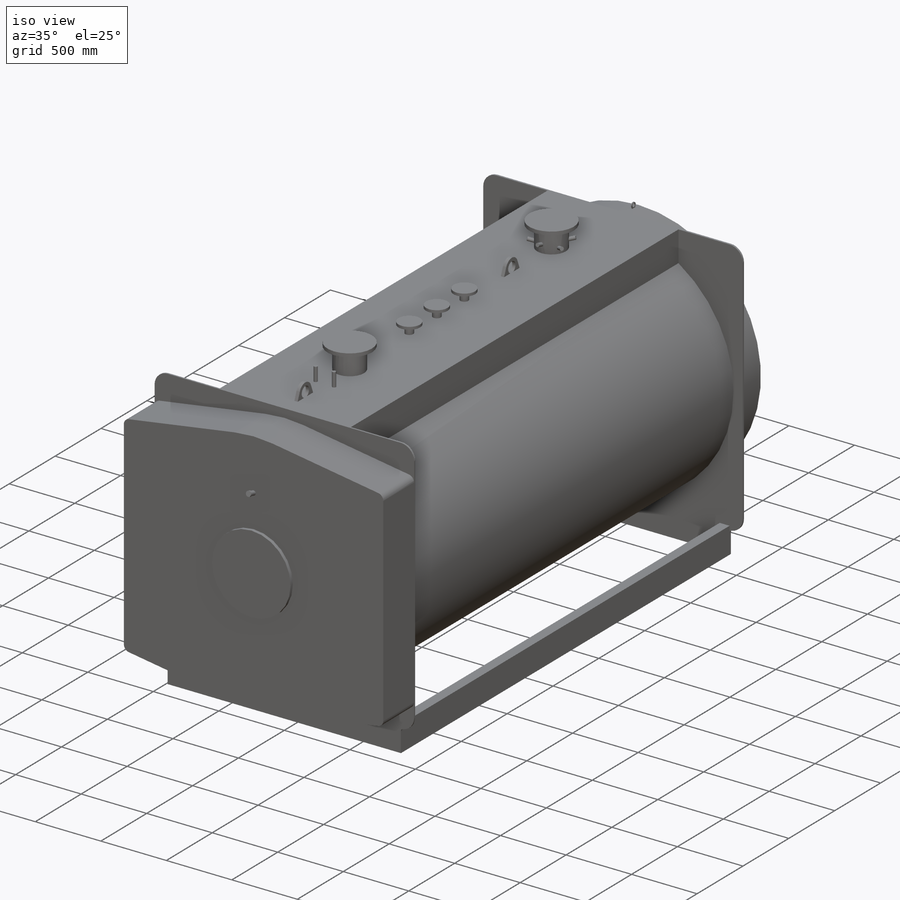
[diagram: iso view]
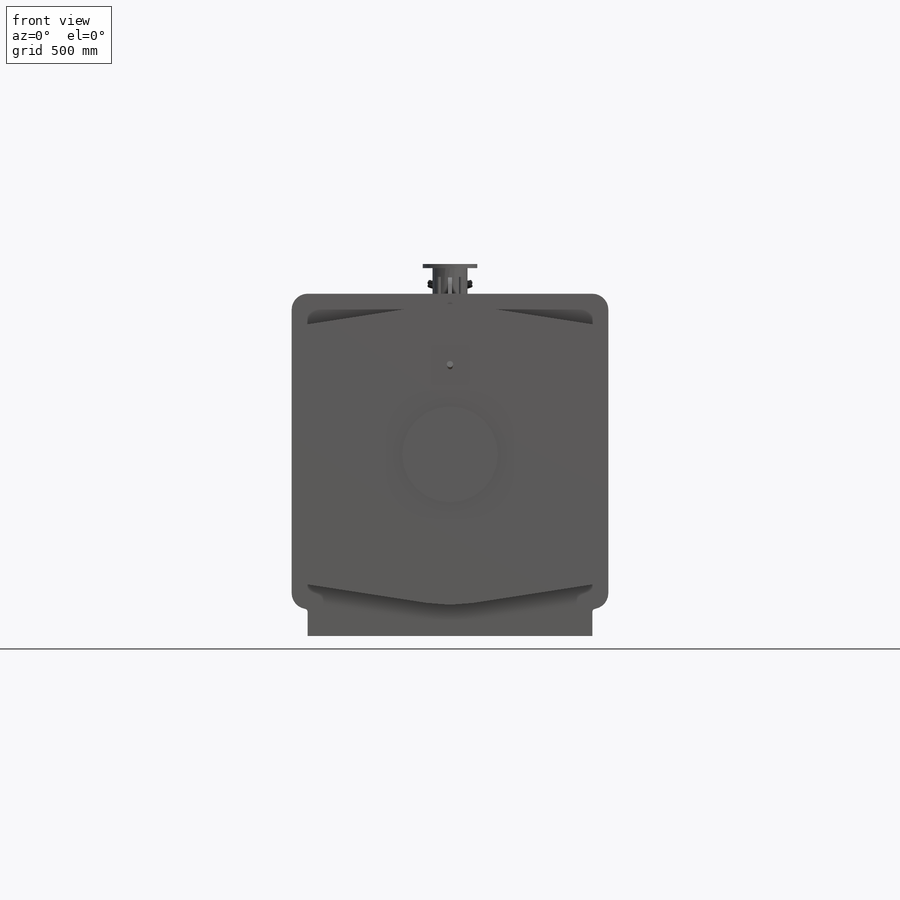
[diagram: front view]
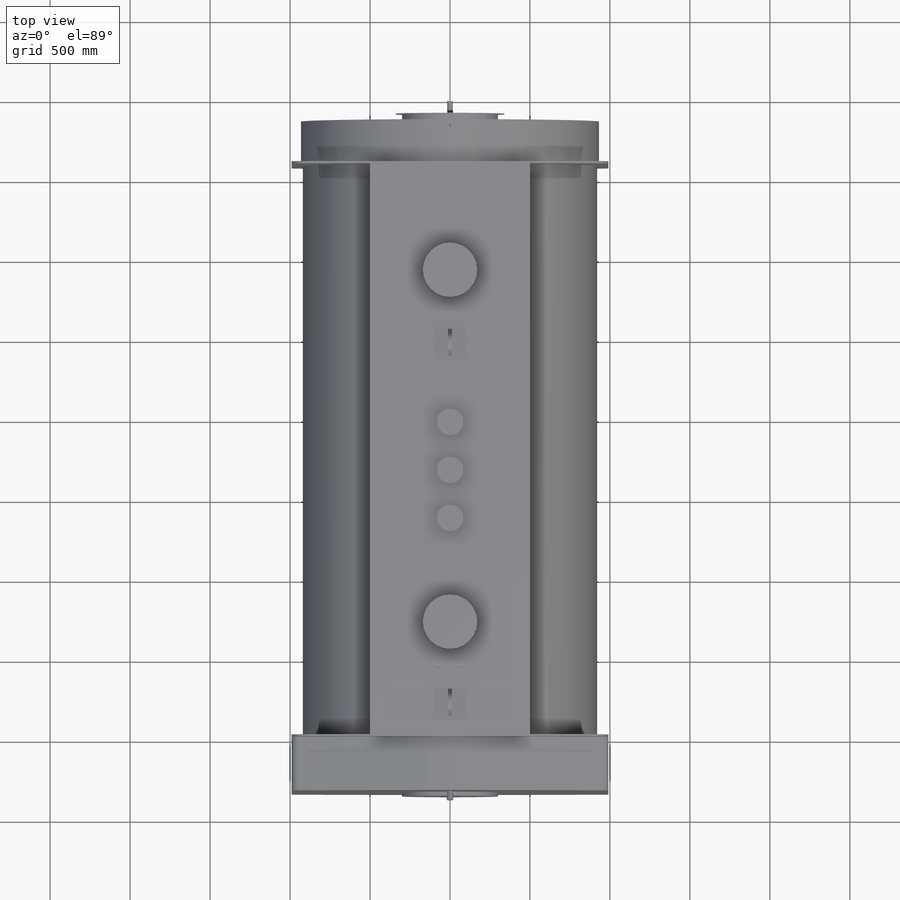
[diagram: top view]
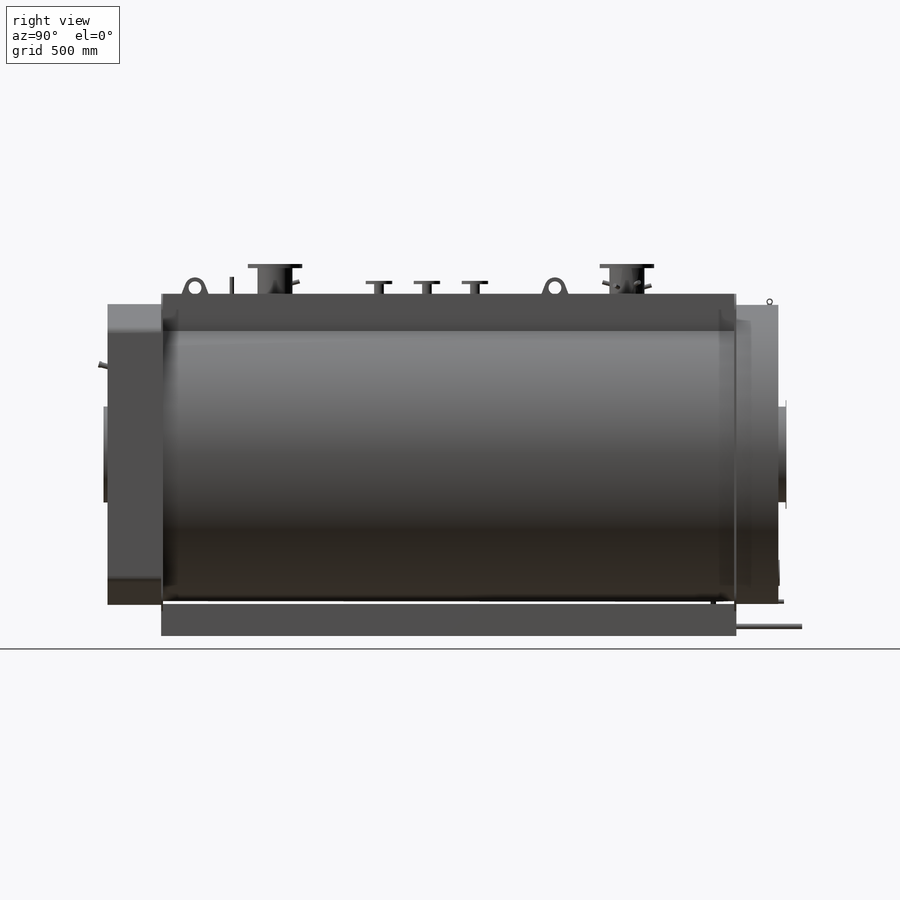
[diagram: right view]
SOLIDWORKS PART (.sldprt)
format: sldprt  version: not decoded by parser v0  size: 772,608 bytes
history: native  units: mm
features: sketch x22, extrude x14, plane x5, revolve x4, material x1, sweep x1, pattern_circular x1 + 3 further entries (+15 scaffold rows collapsed; 5 parser-record rows omitted)
feature tree (71):
  scaffold x15  (default folders/planes/origin — collapsed)
  material  "Materiale <non specificato>"
  plane  "Piano frontale"
  plane  "Piano superiore"
  plane  "Piano destro"
  "Asse Y"
  "Asse Z"
  sketch  "Schizzo1"  dims[c1.D3=950.0mm c1.D4=1230.0mm c1.D5=100.0mm c1.D6=20.0mm c1.D1=1980.0mm c1.D2=2140.0mm c2.D4=610.0mm c2.D3=170.0mm c3.D4=1780.0mm c3.D3=170.0mm]
  extrude  "piastra anteriore"  Depth=12mm
  sketch  "Schizzo2"  dims[D1=1840.0mm D2=1135.0mm D3=1000.0mm]
  extrude  "corpo"  Depth=3570mm
  "Assi4"
  plane  "Piano4"
  sketch  "Schizzo3"  dims[c1.D1=~45.173359mm c1.D2=55.0mm c2.D1=0.0mm]
  extrude  "piastra posteriore"  Depth=14mm
  sketch  "Schizzo4"  dims[D1=75.0mm D2=200.0mm D5=8.0mm D6=1.0mm D7=5.0mm]
  parser-record x5  (decoder bookkeeping rows leaked as tree rows — omitted from the tree; the rows remain in map.json)
  sketch  "Schizzo23"  dims[c1.D1=1870.0mm c1.D2=598.0mm c1.D3=172.0mm c1.D4=45.0mm c1.D5=~403.495973mm c2.D3=172.0mm c2.D5=~403.495973mm c3.D3=263.0mm c3.D5=680.0mm c3.D1=360.0deg c4.D3=5.0mm c4.D4=1.0mm c4.D7=0.0mm]
  sketch  "Schizzo24"  dims[c1.D1=26.7mm c1.D2=124.5mm c1.D3=997.7977mm c2.D2=215.5mm]
  extrude  "Estrusione-Estrusione12"  Depth=35mm
  sketch  "Schizzo25"  dims[c1.D1=325.0mm c1.D2=162.0mm c2.D1=740.0mm]
  extrude  "Estrusione-Estrusione13"  Depth=8mm
  sketch  "Schizzo31"  dims[c1.D1=20.0mm c1.D2=40.0mm c1.D3=25.0mm c2.D2=25.0mm c2.D4=55.0mm c2.D5=30.0mm c2.D6=5.0mm]
  extrude  "Estrusione-Estrusione15"  Depth=8mm
  sketch  "Schizzo10"  dims[c1.D1=60.0mm c1.D2=~83.146499mm c2.D2=90.0deg c3.D2=265.0mm c3.D3=60.0mm c3.D4=180.0mm c4.D2=555.0mm c4.D5=200.0mm c4.D4=80.0mm c4.D6=~181.22086mm c4.D3=60.0mm c5.D6=~144.222051mm c5.D4=130.0mm]
  plane  "Piano1"
  sketch  "Schizzo11"  dims[D1=33.7mm]
  sweep  "Sweep1"
  sketch  "Schizzo21"  dims[c1.D1=219.1mm c1.D2=60.3mm c1.D3=48.3mm c1.D4=88.9mm c1.D5=42.4mm c1.D6=42.4mm c1.D7=48.3mm c2.D3=88.9mm c2.D6=42.4mm c2.D7=42.4mm c3.D6=~52.072998mm c3.D9=48.3mm c3.D7=139.7mm c3.D11=26.7mm c3.D4=2200.0mm c3.D5=500.0mm c4.D6=200.0mm c4.D7=200.0mm c4.D8=700.0mm c4.D3=950.0mm c4.D5=1920.0mm c5.D6=300.0mm c5.D9=300.0mm c5.D10=~2160.208323mm c5.D5=670.0mm c5.D7=650.0mm c6.D10=270.0mm c6.D12=140.0mm]
  extrude  "Estrusione-Estrusione9"  Depth=1191mm
  sketch  "Schizzo22"  dims[D1=340.0mm]
  extrude  "Estrusione-Estrusione10"  Depth=26mm
  extrude  "Estrusione-Estrusione11"  [1 undecoded]
  sketch  "Schizzo21<4>"  dims[D1=1085.0mm]
  sketch  "Schizzo35"  dims[D1=165.0mm]
  extrude  "Estrusione-Estrusione16"  Depth=20mm
  extrude  "Estrusione-Estrusione18"  [1 undecoded]
  sketch  "Schizzo21<6>"  dims[D1=105.0mm]
  sketch  "Schizzo9"  dims[c1.D1=124.0mm c1.D2=270.15mm c2.D2=19.0deg c2.D3=26.9mm c2.D1=18.0mm c2.D4=123.5mm c2.D5=60.0mm c3.D2=245.0mm c4.D2=75.0deg c4.D4=145.0mm]
  revolve  "Rivoluzione3"  Angle=360deg
  sketch  "Schizzo34"  dims[c1.D1=124.0mm c1.D2=270.15mm c2.D2=19.0deg c2.D3=26.9mm c2.D1=18.0mm c2.D4=123.5mm c2.D5=60.0mm c3.D2=245.0mm c4.D2=75.0deg c4.D4=120.0mm c5.D2=125.0mm c5.D4=~75.76422mm c6.D4=75.0deg c6.D1=18.0mm]
  revolve  "Rivoluzione5"  Angle=360deg
  pattern_circular  "RipetizioneCircolare1"  Count=3 Angle=360deg
  sketch  "Schizzo33"  dims[c1.D1=124.0mm c1.D2=270.15mm c2.D2=19.0deg c2.D3=26.9mm c2.D1=18.0mm c2.D4=123.5mm c2.D5=60.0mm c3.D2=245.0mm c4.D2=75.0deg c4.D4=120.0mm c5.D2=245.0mm c6.D2=75.0deg c6.D4=120.0mm]
  revolve  "Rivoluzione4"  Angle=360deg
  sketch  "Schizzo14"  dims[c1.D3=45.0mm c1.D4=625.0mm c1.D2=~862.67862mm c2.D4=487.0mm c2.D1=45.0mm c2.D2=1880.0mm c3.D1=795.7mm c3.D2=974.0mm c4.D1=1518.0mm c4.D2=99.5mm]
  extrude  "Estrusione-Estrusione5"  Depth=335mm
  sketch  "Schizzo15"  dims[D1=600.0mm D2=276.5mm]
  extrude  "Estrusione-Estrusione6"  Depth=25mm
  sketch  "Schizzo18"  dims[c1.D1=550.0mm c1.D2=~103.414962mm c2.D2=15.0deg c3.D2=208.0mm c4.D2=15.0deg c4.D3=57.0mm c4.D4=100.0mm c4.D5=40.0mm c5.D2=~418.510026mm c6.D2=75.0deg c6.D4=20.0mm c6.D5=33.7mm c6.D6=40.0mm c6.D7=16.0mm]
  revolve  "Rivoluzione2"  Angle=360deg
  sketch  "Schizzo37"  dims[c1.D2=65.0mm c1.D3=80.0mm c1.D7=80.0mm c1.D1=190.0mm c1.D4=50.0mm c1.D5=200.0mm c1.D6=0.1mm c2.D7=115.0mm c2.D9=2250.0mm c2.D6=2062.0mm c2.D8=2.0]
  extrude  "Estrusione-Estrusione17"  Depth=25mm
decode coverage: 39 of 42 modeling features carry decoded parameters; 3 rows unclassified (native names shown)
note: ~ marks probable driven/reference dimensions
note: 2 parameter values undecoded
note: suppression state not decoded; provenance and decode notes live in map.json
